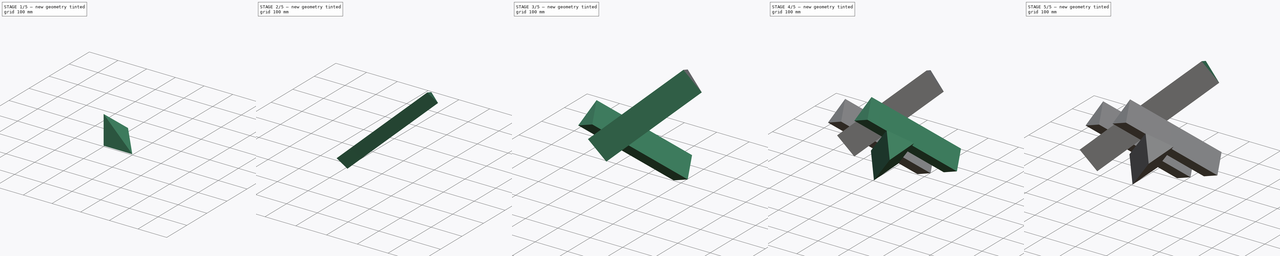
[diagram: build sequence overview — one tinted view per stage of 5, left to right]
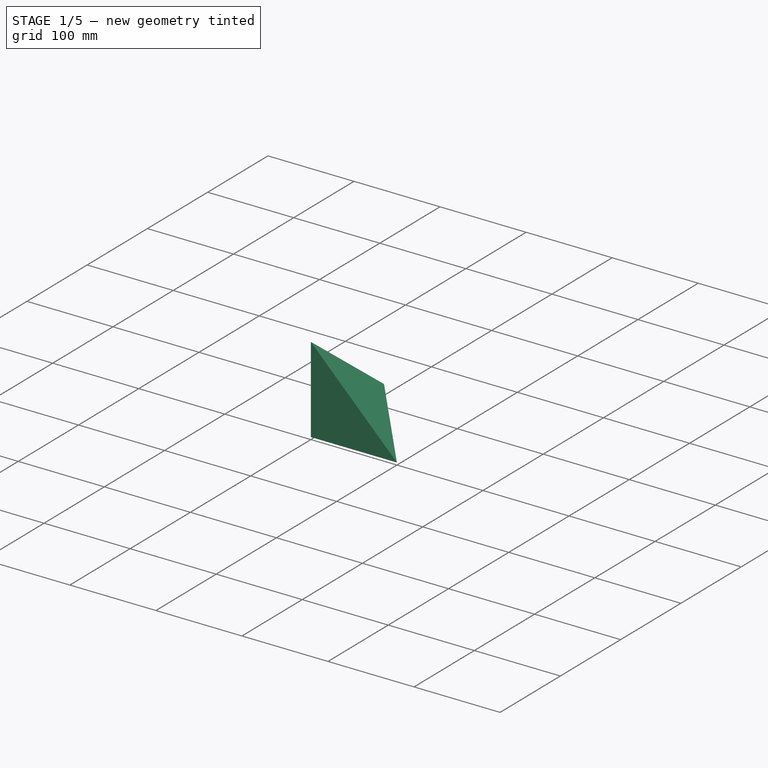
[diagram: stage 1 of 5 — iso view after this stage's code; geometry added in this stage tinted green]
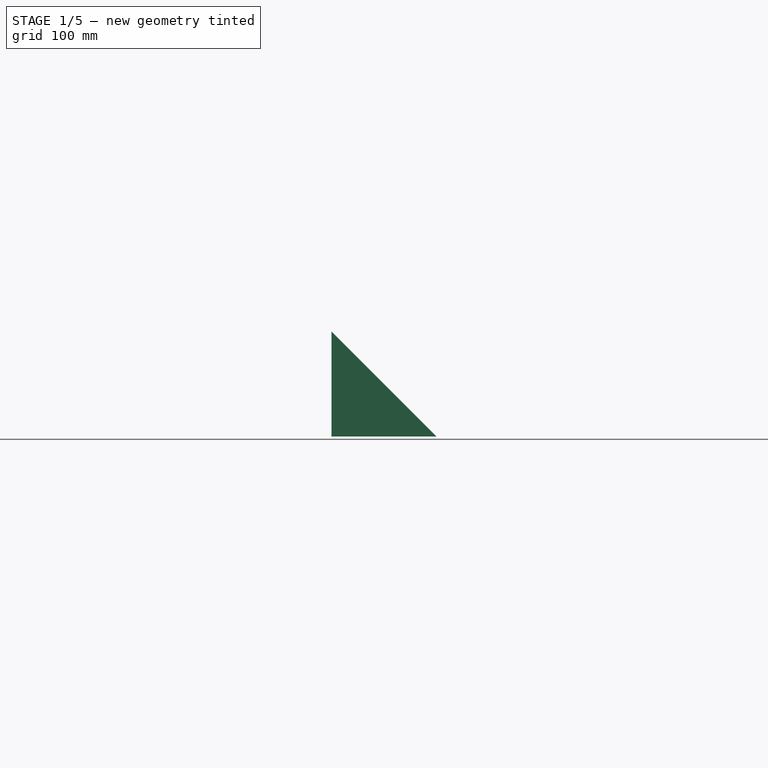
[diagram: stage 1 of 5 — front view after this stage's code; geometry added in this stage tinted green]
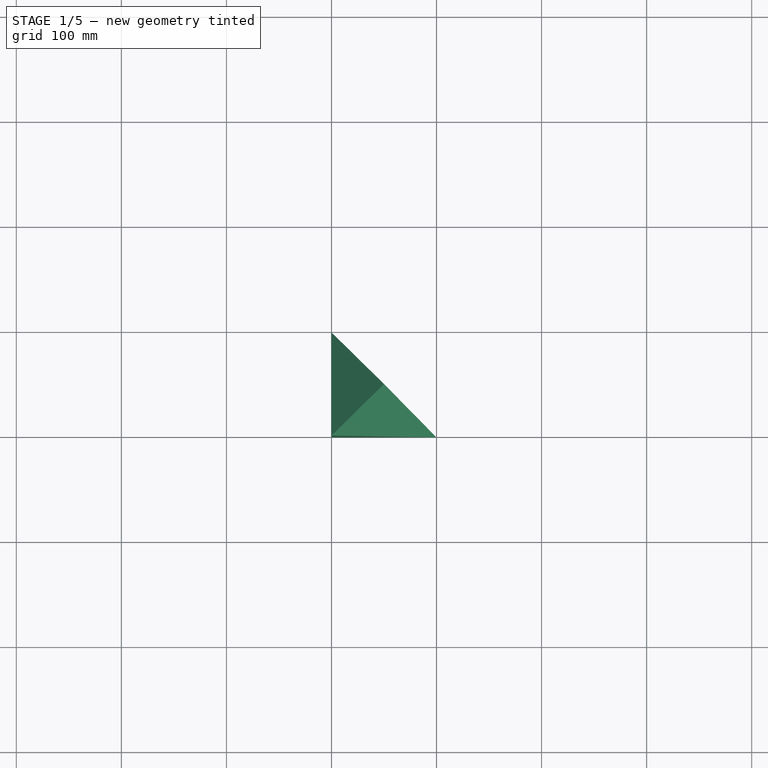
[diagram: stage 1 of 5 — top view after this stage's code; geometry added in this stage tinted green]
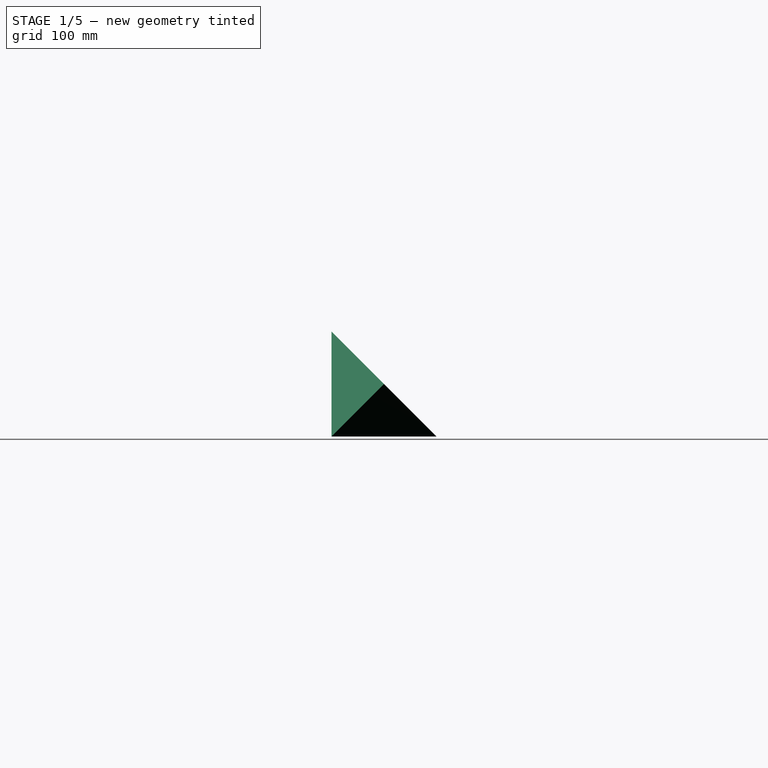
[diagram: stage 1 of 5 — right view after this stage's code; geometry added in this stage tinted green]
FCSTD DOCUMENT  (FreeCAD 1.0R39319 (Git))
Label: rhombic-dodecahedron2
License: All rights reserved
LicenseURL: https://en.wikipedia.org/wiki/All_rights_reserved
objects: PartDesign::Body×14, PartDesign::FeatureBase×11, PartDesign::Plane×7, PartDesign::Mirrored×4, PartDesign::Pocket×3, Sketcher::SketchObject×3, PartDesign::SubShapeBinder×2, PartDesign::Point×2, PartDesign::Pad×2, Spreadsheet::Sheet×1, App::VarSet×1, PartDesign::AdditiveBox×1, PartDesign::CoordinateSystem×1
note: 80 computed .brp shape members not serialized (recipe doc carries the construction recipe); baked Part::Feature solids carry a one-line shape summary decoded from their .brp

FEATURE [Spreadsheet::Sheet] Spreadsheet
FEATURE [App::VarSet] VarSet
  Dode = 70.7107
  DodeSize = 100
  expr: Dode = sqrt(2) * DodeSize * 0.5
FEATURE [PartDesign::AdditiveBox] Box
  AttacherType = Attacher::AttachEngine3D
  AttachmentSupport = -> [VarSet]
  Height = 100
  Length = 100
  Refine = true
  Suppressed = false
  Width = 100
  expr: Height = VarSet.DodeSize
  expr: Length = VarSet.DodeSize
  expr: Width = VarSet.DodeSize
FEATURE [PartDesign::Plane] DatumPlane
  AttachmentOffset = pos=(0,0,0) rot=(1,0,0;0.785398rad)
  AttachmentSupport = -> [Box]
  Length = 247.568
  MapMode = 47
  Placement = pos=(100,100,100) rot=(0,0.92388,-0.382683;3.14159rad)
  ResizeMode = 0
  Width = 330.411
FEATURE [PartDesign::Plane] DatumPlane001
  AttachmentOffset = pos=(0,0,0) rot=(-1,0,0;0.785398rad)
  AttachmentSupport = -> [Box]
  Length = 247.568
  MapMode = 47
  Placement = pos=(100,100,100) rot=(0.678598,-0.678598,-0.281085;2.59356rad)
  ResizeMode = 0
  Width = 330.411
FEATURE [PartDesign::Plane] DatumPlane002
  AttachmentOffset = pos=(0,0,0) rot=(1,0,0;0.785398rad)
  AttachmentSupport = -> [Box]
  Length = 247.568
  MapMode = 47
  Placement = pos=(100,100,100) rot=(0.678598,0.281085,-0.678598;2.59356rad)
  ResizeMode = 0
  Width = 330.411
FEATURE [PartDesign::Pocket] Pocket
  BaseFeature = -> Box
  Direction = (0,0.707107,0.707107)
  Length = 70.7107
  Length2 = 5
  Profile = -> DatumPlane
  Refine = true
  Reversed = true
  Suppressed = false
  Type = 0
  expr: Length = VarSet.Dode
FEATURE [PartDesign::Pocket] Pocket001
  BaseFeature = -> Pocket
  Direction = (0.707107,2e-16,0.707107)
  Length = 70.7107
  Length2 = 5
  Profile = -> DatumPlane001
  Refine = true
  Reversed = true
  Suppressed = false
  Type = 0
  expr: Length = VarSet.Dode
FEATURE [PartDesign::Pocket] Pocket002
  BaseFeature = -> Pocket001
  Direction = (0.707107,0.707107,0)
  Length = 70.7107
  Length2 = 5
  Profile = -> DatumPlane002
  Refine = true
  Reversed = true
  Suppressed = false
  Type = 0
  expr: Length = VarSet.Dode
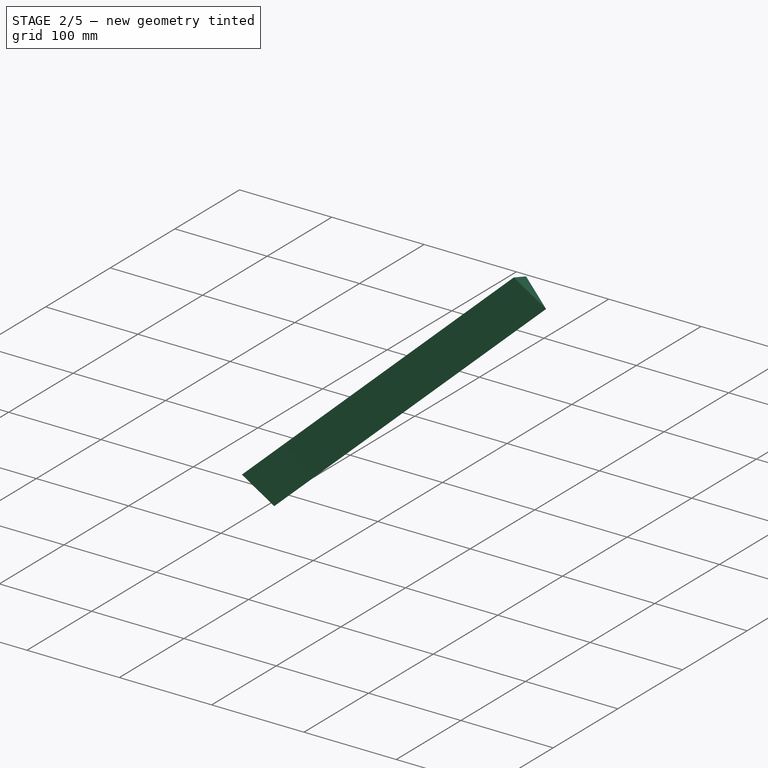
[diagram: stage 2 of 5 — iso view after this stage's code; geometry added in this stage tinted green]
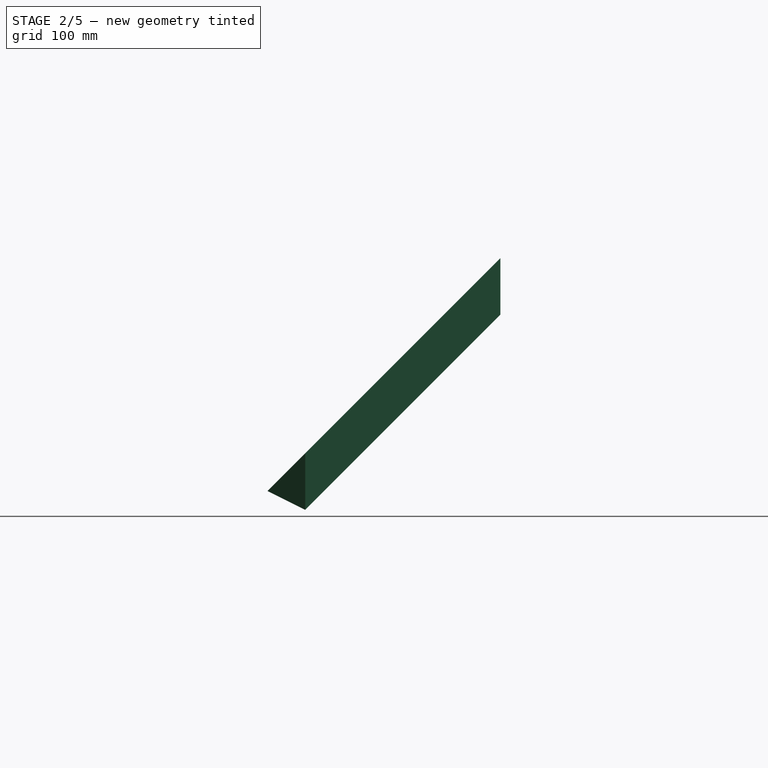
[diagram: stage 2 of 5 — front view after this stage's code; geometry added in this stage tinted green]
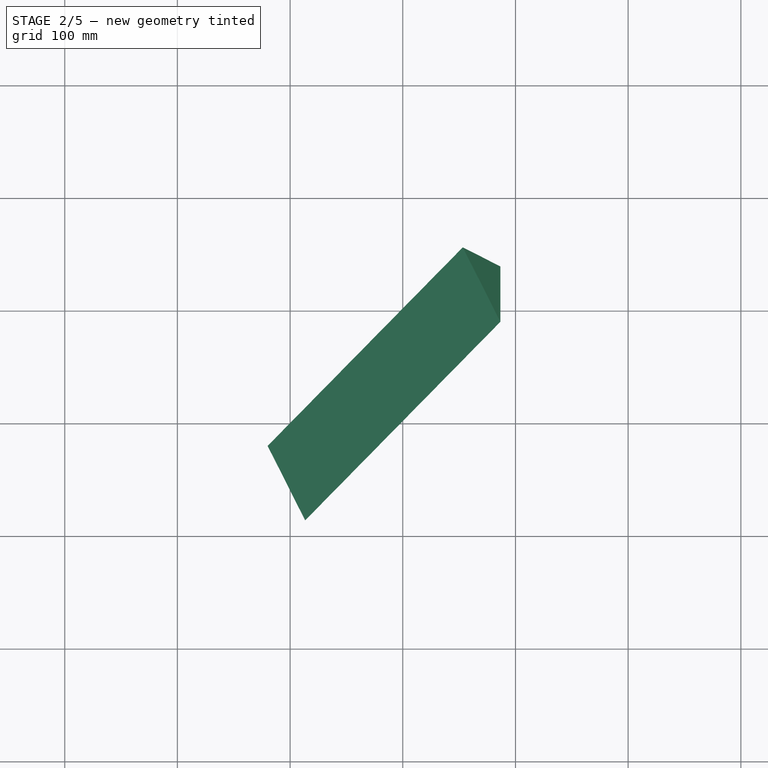
[diagram: stage 2 of 5 — top view after this stage's code; geometry added in this stage tinted green]
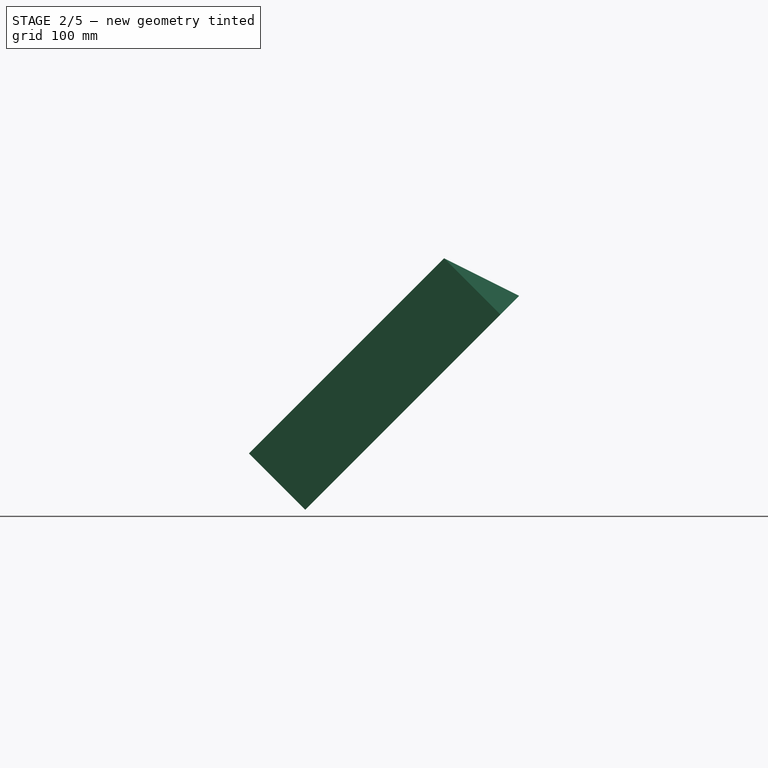
[diagram: stage 2 of 5 — right view after this stage's code; geometry added in this stage tinted green]
FEATURE [PartDesign::Mirrored] Mirrored
  BaseFeature = -> Pocket002
  MirrorPlane = -> XY_Plane
  Refine = true
  Suppressed = false
  TransformMode = 1
FEATURE [PartDesign::Mirrored] Mirrored001
  BaseFeature = -> Mirrored
  MirrorPlane = -> YZ_Plane
  Refine = true
  Suppressed = false
  TransformMode = 1
FEATURE [PartDesign::Body] Body001  label="bad"
  AllowCompound = false
  Group = -> [Binder,DatumPoint,DatumPlane003,DatumPoint001,Local_CS,DatumPlane004,Sketch,Pad]
  Origin = -> Origin001
  Tip = -> Pad
FEATURE [PartDesign::Mirrored] Mirrored002
  BaseFeature = -> Mirrored001
  MirrorPlane = -> XZ_Plane
  Refine = true
  Suppressed = false
  TransformMode = 1
FEATURE [PartDesign::Body] Body  label="rhombic-dodecahedron"
  AllowCompound = false
  Group = -> [Box,DatumPlane,DatumPlane001,DatumPlane002,Pocket,Pocket001,Pocket002,Mirrored,Mirrored001,Mirrored002]
  Origin = -> Origin
  Tip = -> Mirrored002
FEATURE [PartDesign::SubShapeBinder] Binder001
  BindCopyOnChange = 0
  BindMode = 0
  ClaimChildren = false
  Context = -> Body002 [Binder001.]
  Fuse = false
  MakeFace = true
  OffsetFill = false
  OffsetIntersection = false
  OffsetJoinType = 0
  OffsetOpenResult = false
  PartialLoad = false
  Refine = true
  Relative = true
  Support = -> [Body[Mirrored002.]]
  _Version = 2
FEATURE [Sketcher::SketchObject] Sketch001
  ArcFitTolerance = 1e-06
  AttachmentSupport = -> [Binder001]
  ExternalGeometry = -> [Binder001]
  FullyConstrained = true
  MakeInternals = false
  MapMode = 5
  Placement = pos=(0,-50,50) rot=(1,0,0;0.785398rad)
  sketch-geometry (3):
    g0: LineSegment StartX=-33.3333 StartY=23.5702 StartZ=0 EndX=33.3333 EndY=-23.5702 EndZ=0
    g1: GeomPoint X=0 Y=0 Z=0
    g2: LineSegment StartX=0 StartY=0 StartZ=0 EndX=-25 EndY=-35.3553 EndZ=0
  constraints (7):
    c: PointOnObject(g0,g-6)
    c: PointOnObject(g0,g-4)
    c: Perpendicular(g0,g-6)
    c: PointOnObject(g-1,g0)
    c: Coincident(g1,g-1)
    c: Coincident(g2,g1)
    c: Symmetric(g-5,g-5,g2)
FEATURE [PartDesign::Plane] DatumPlane005
  AttachmentSupport = -> [Sketch001]
  Length = 530.697
  MapMode = 47
  Placement = pos=(0,-50,50) rot=(0.945607,-0.124491,-0.300549;2.39496rad)
  ResizeMode = 0
  Width = 516.111
FEATURE [Sketcher::SketchObject] Sketch002
  ArcFitTolerance = 1e-06
  AttachmentSupport = -> [DatumPlane005]
  ExternalGeometry = -> [Sketch001,Binder001]
  FullyConstrained = false
  MakeInternals = false
  MapMode = 5
  Placement = pos=(1.3e-15,-50,50) rot=(0.945607,-0.124491,-0.300549;2.39496rad)
  sketch-geometry (3):
    g0: LineSegment StartX=0 StartY=0 StartZ=0 EndX=-40.8248 EndY=2.84e-14 EndZ=0
    g1: LineSegment StartX=-40.8248 StartY=2.84e-14 StartZ=0 EndX=0 EndY=70.7107 EndZ=0
    g2: LineSegment StartX=0 StartY=70.7107 StartZ=0 EndX=0 EndY=0 EndZ=0
  constraints (6):
    c: Coincident(g0,g-1)
    c: Coincident(g0,g-4)
    c: Coincident(g1,g0)
    c: Coincident(g2,g1)
    c: Coincident(g2,g0)
    c: Vertical(g2)
FEATURE [PartDesign::Pad] Pad001
  Direction = (-0.57735,-0.57735,-0.57735)
  Length = 300
  Length2 = 10
  Midplane = true
  Placement = pos=(0,-50,50) rot=(0.945607,-0.124491,-0.300549;2.39496rad)
  Profile = -> Sketch002
  ReferenceAxis = -> Sketch002 [N_Axis]
  Refine = true
  Suppressed = false
  Type = 0
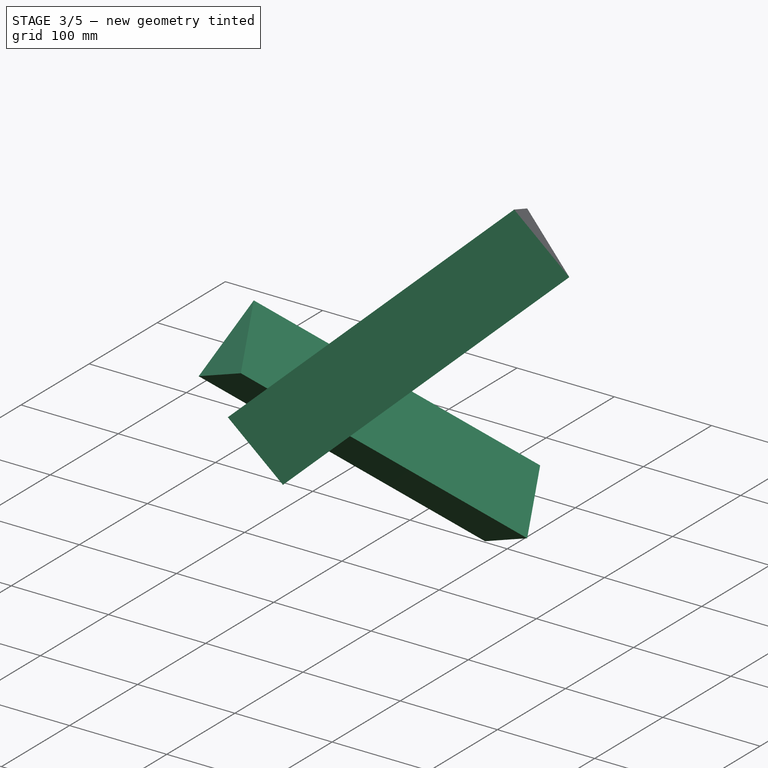
[diagram: stage 3 of 5 — iso view after this stage's code; geometry added in this stage tinted green]
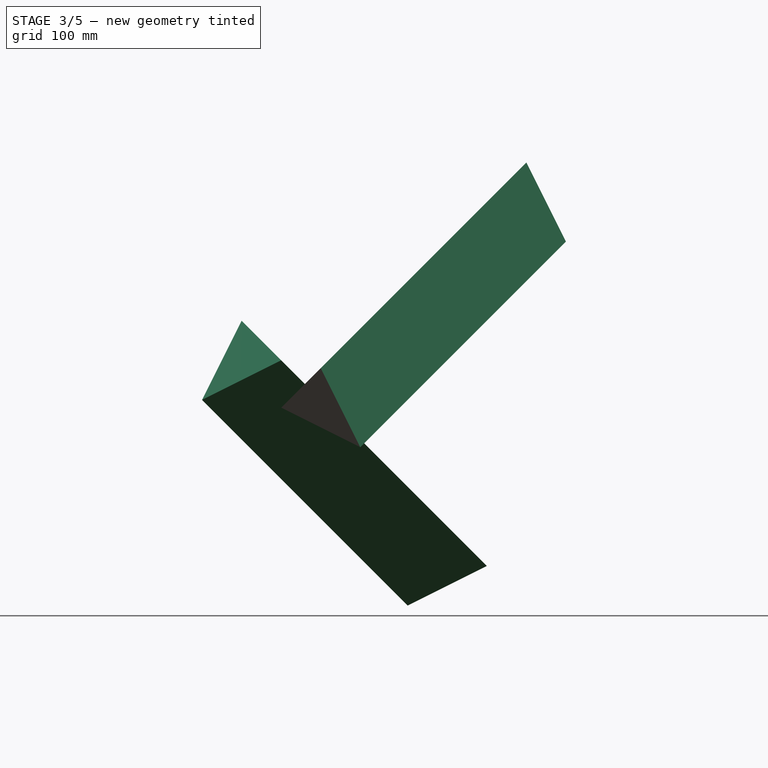
[diagram: stage 3 of 5 — front view after this stage's code; geometry added in this stage tinted green]
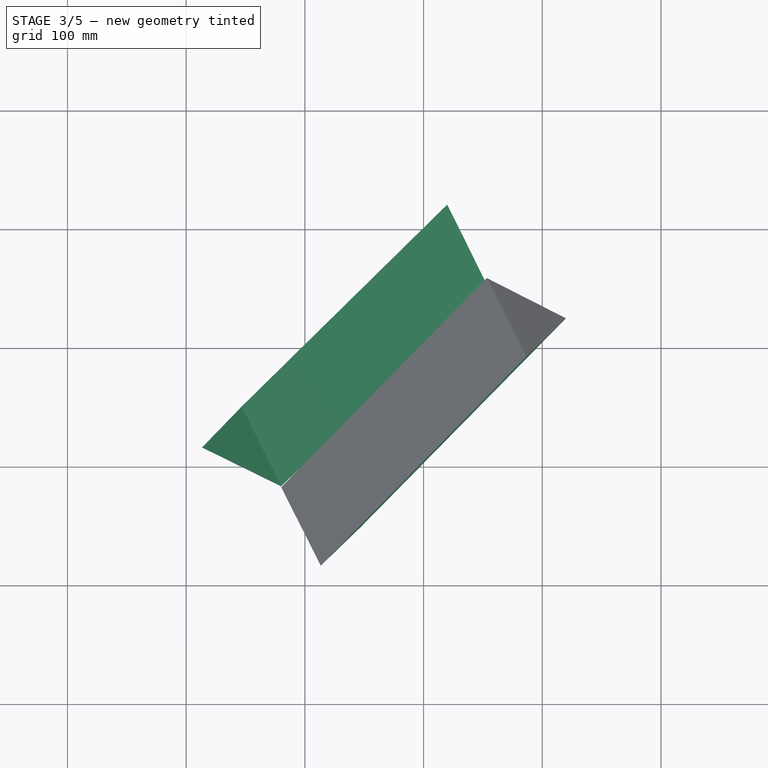
[diagram: stage 3 of 5 — top view after this stage's code; geometry added in this stage tinted green]
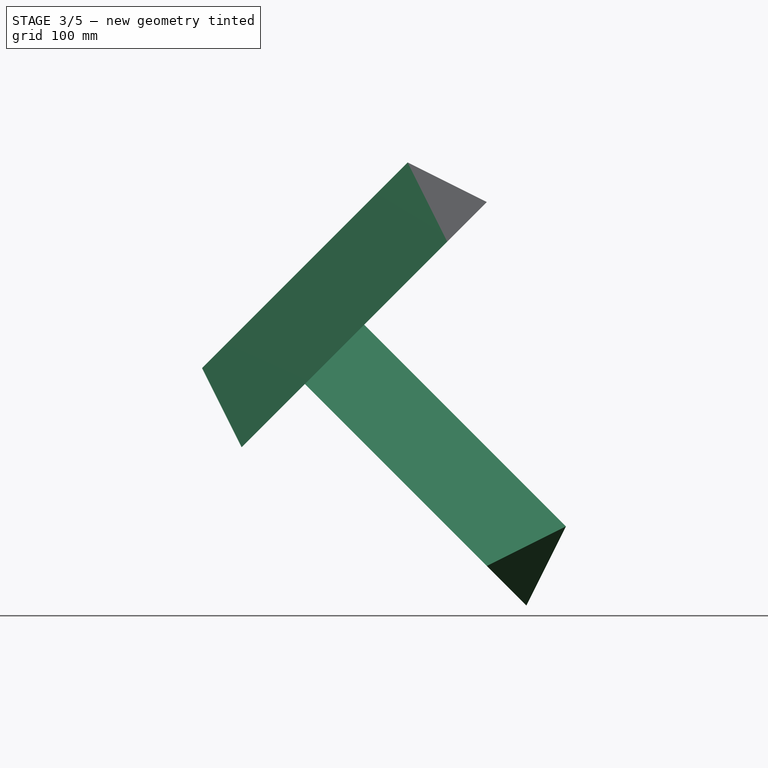
[diagram: stage 3 of 5 — right view after this stage's code; geometry added in this stage tinted green]
FEATURE [PartDesign::Plane] DatumPlane006
  AttachmentSupport = -> [Pad001]
  Length = 520.449
  MapMode = 5
  Placement = pos=(1.3e-15,-50,50) rot=(0.705828,-0.456591,0.541601;3.26167rad)
  ResizeMode = 0
  Width = 580.236
FEATURE [PartDesign::Mirrored] Mirrored003
  BaseFeature = -> Pad001
  MirrorPlane = -> Sketch002 [V_Axis]
  Originals = -> [Pad001]
  Placement = pos=(0,-50,50) rot=(0.945607,-0.124491,-0.300549;2.39496rad)
  Refine = true
  Suppressed = false
  TransformMode = 0
FEATURE [PartDesign::Body] Body005  label="top4"
  AllowCompound = false
  Group = -> [Clone002]
  Origin = -> Origin005
  Placement = pos=(0,0,0) rot=(0,0,1;-1.5708rad)
  Tip = -> Clone002
FEATURE [PartDesign::FeatureBase] Clone003
  BaseFeature = -> Body002
  Suppressed = false
FEATURE [PartDesign::Body] Body006  label="down"
  AllowCompound = false
  Group = -> [Clone003]
  Origin = -> Origin006
  Placement = pos=(0,0,0) rot=(0,1,0;1.5708rad)
  Tip = -> Clone003
FEATURE [PartDesign::FeatureBase] Clone004
  BaseFeature = -> Body002
  Suppressed = false
FEATURE [PartDesign::Body] Body010
  AllowCompound = false
  Group = -> [Clone007]
  Origin = -> Origin010
  Placement = pos=(0,0,0) rot=(0,0,1;3.14159rad)
  Tip = -> Clone007
FEATURE [PartDesign::FeatureBase] Clone008
  BaseFeature = -> Body007
  Placement = pos=(0,0,0) rot=(0,1,0;3.14159rad)
  Suppressed = false
FEATURE [PartDesign::Body] Body012
  AllowCompound = false
  Group = -> [Clone009]
  Origin = -> Origin012
  Placement = pos=(0,0,0) rot=(0,0,1;1.5708rad)
  Tip = -> Clone009
FEATURE [PartDesign::FeatureBase] Clone010
  BaseFeature = -> Body011
  Placement = pos=(0,0,0) rot=(0,0,1;-1.5708rad)
  Suppressed = false
FEATURE [PartDesign::Body] Body013
  AllowCompound = false
  Group = -> [Clone010]
  Origin = -> Origin013
  Placement = pos=(0,0,0) rot=(1,0,0;1.5708rad)
  Tip = -> Clone010
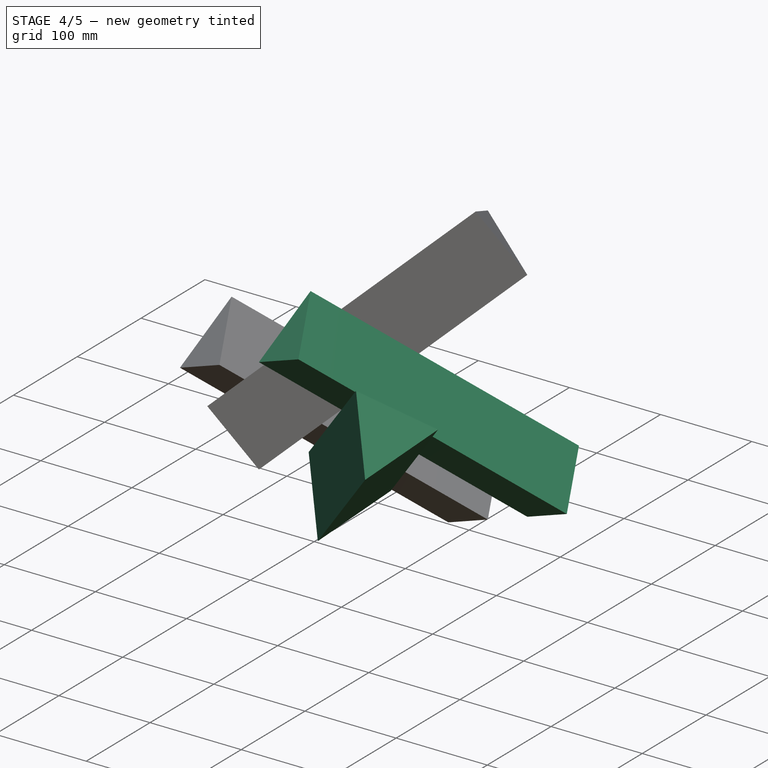
[diagram: stage 4 of 5 — iso view after this stage's code; geometry added in this stage tinted green]
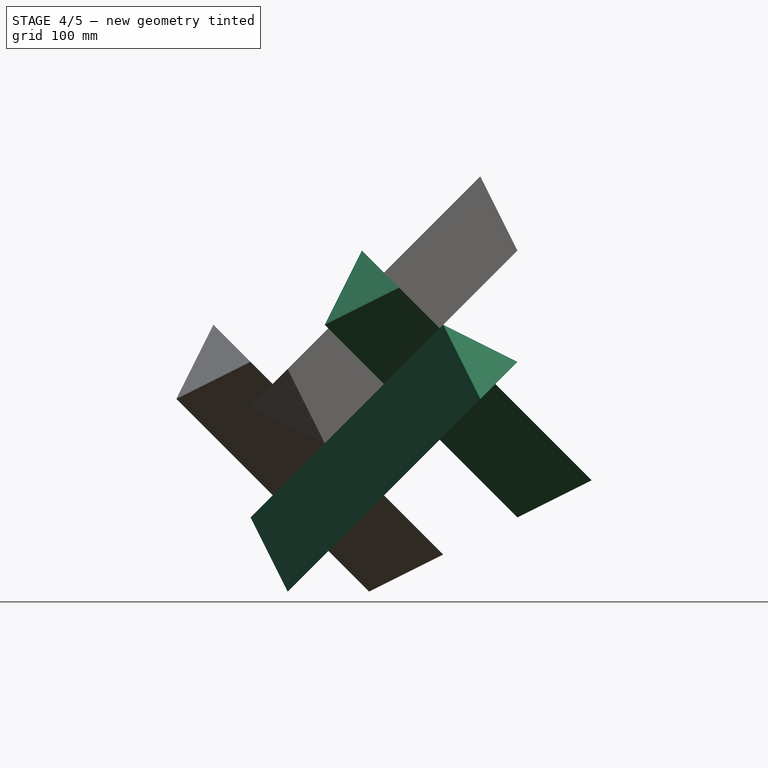
[diagram: stage 4 of 5 — front view after this stage's code; geometry added in this stage tinted green]
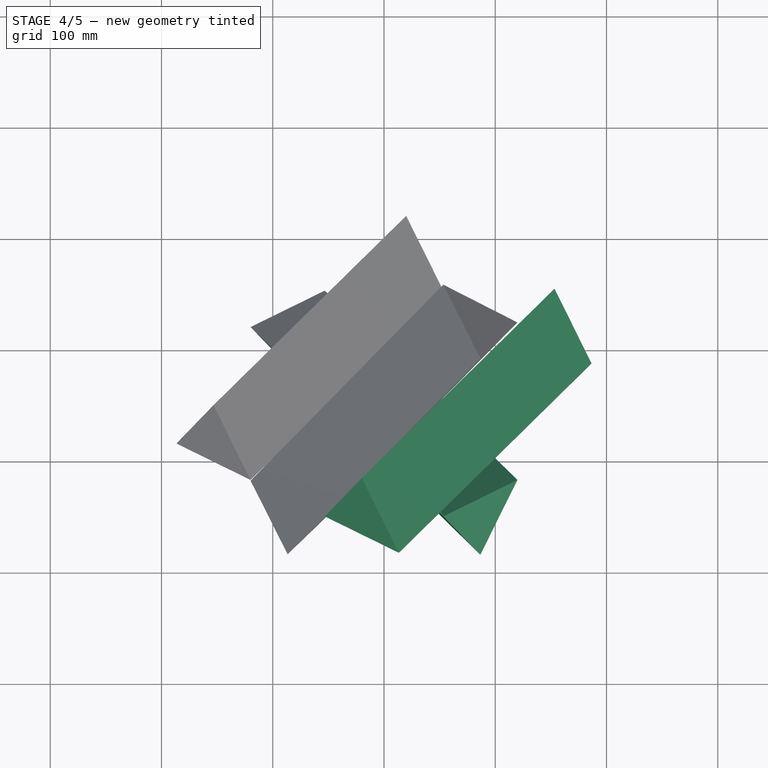
[diagram: stage 4 of 5 — top view after this stage's code; geometry added in this stage tinted green]
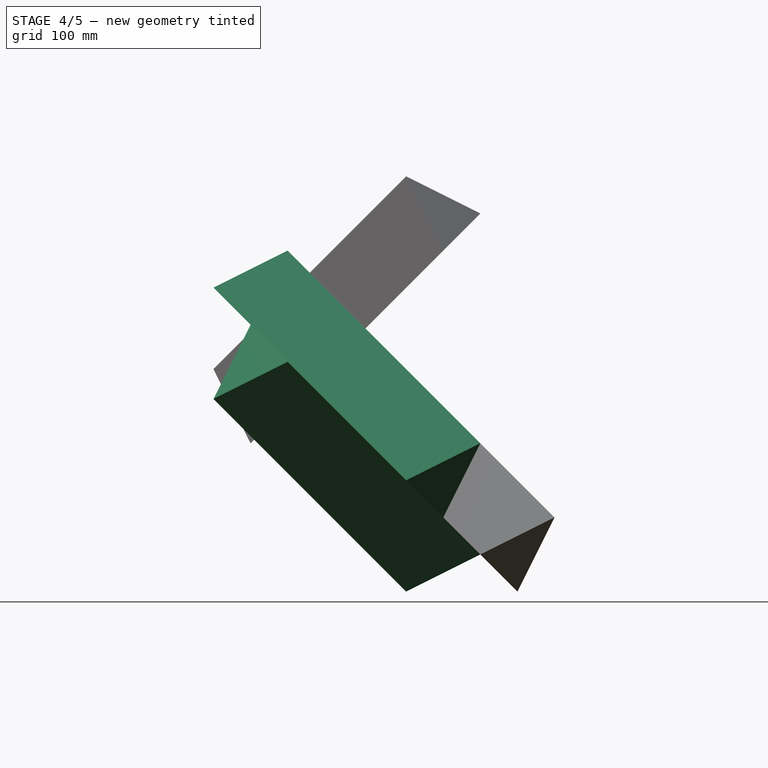
[diagram: stage 4 of 5 — right view after this stage's code; geometry added in this stage tinted green]
FEATURE [PartDesign::Body] Body007  label="brown"
  AllowCompound = false
  Group = -> [Clone004]
  Origin = -> Origin007
  Placement = pos=(0,0,0) rot=(0,1,0;3.14159rad)
  Tip = -> Clone004
FEATURE [PartDesign::FeatureBase] Clone005
  BaseFeature = -> Body002
  Suppressed = false
FEATURE [PartDesign::Body] Body008
  AllowCompound = false
  Group = -> [Clone005]
  Origin = -> Origin008
  Placement = pos=(0,0,0) rot=(0,1,0;-1.5708rad)
  Tip = -> Clone005
FEATURE [PartDesign::FeatureBase] Clone006
  BaseFeature = -> Body007
  Placement = pos=(0,0,0) rot=(0,1,0;3.14159rad)
  Suppressed = false
FEATURE [PartDesign::Body] Body009
  AllowCompound = false
  Group = -> [Clone006]
  Origin = -> Origin009
  Placement = pos=(0,0,0) rot=(0,0,1;1.5708rad)
  Tip = -> Clone006
FEATURE [PartDesign::FeatureBase] Clone007
  BaseFeature = -> Body007
  Placement = pos=(0,0,0) rot=(0,1,0;3.14159rad)
  Suppressed = false
FEATURE [PartDesign::Body] Body011
  AllowCompound = false
  Group = -> [Clone008]
  Origin = -> Origin011
  Placement = pos=(0,0,0) rot=(0,0,1;-1.5708rad)
  Tip = -> Clone008
FEATURE [PartDesign::FeatureBase] Clone009
  BaseFeature = -> Body006
  Placement = pos=(0,0,0) rot=(0,1,0;1.5708rad)
  Suppressed = false
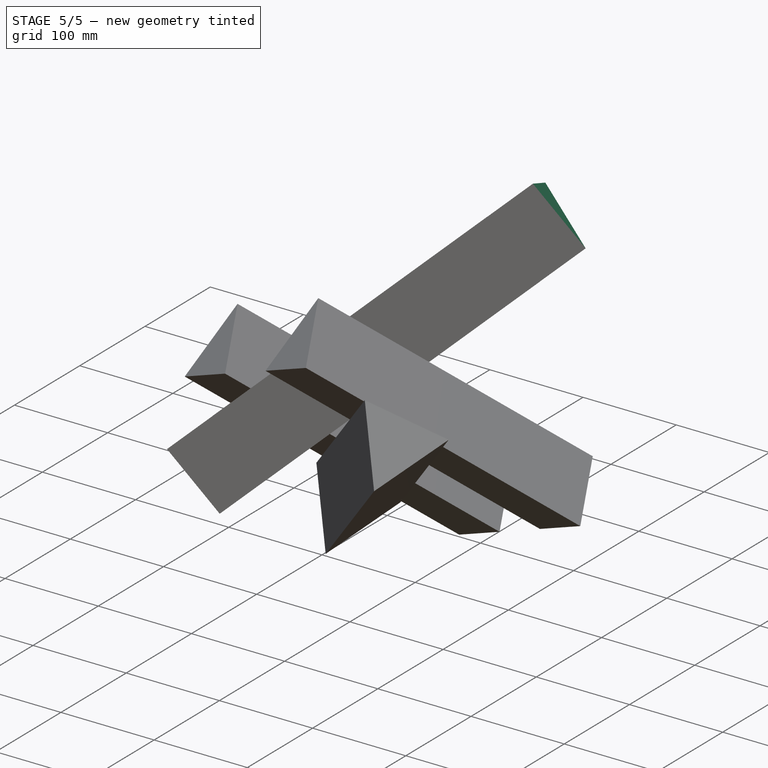
[diagram: stage 5 of 5 — iso view after this stage's code; geometry added in this stage tinted green]
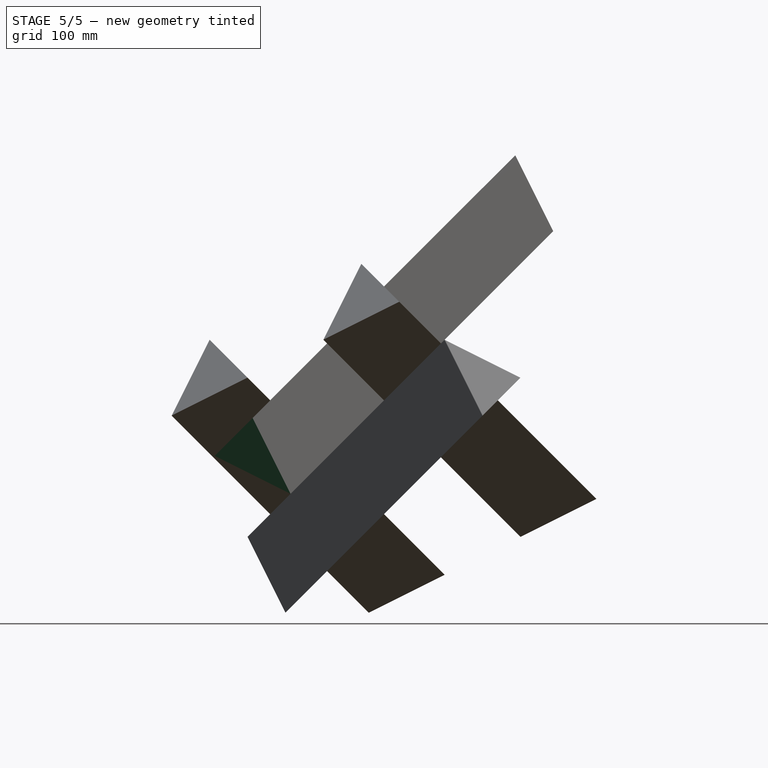
[diagram: stage 5 of 5 — front view after this stage's code; geometry added in this stage tinted green]
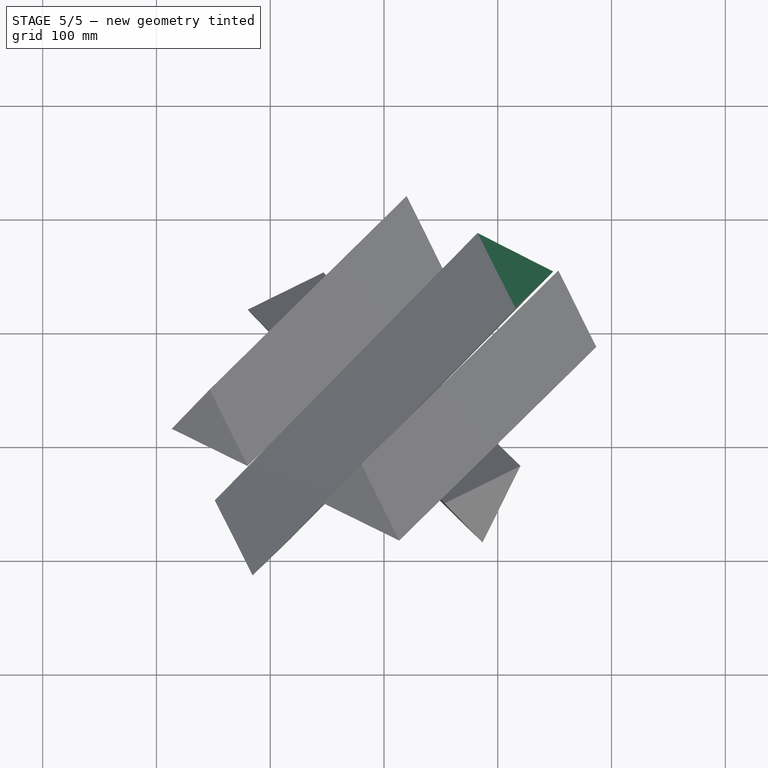
[diagram: stage 5 of 5 — top view after this stage's code; geometry added in this stage tinted green]
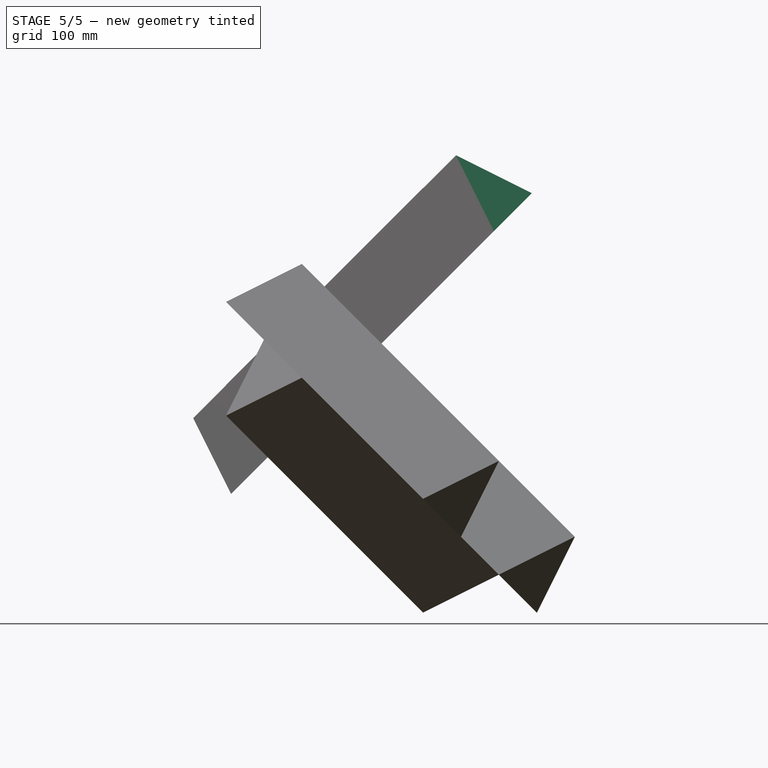
[diagram: stage 5 of 5 — right view after this stage's code; geometry added in this stage tinted green]
FEATURE [PartDesign::SubShapeBinder] Binder
  BindCopyOnChange = 0
  BindMode = 0
  ClaimChildren = false
  Context = -> Body001 [Binder.]
  Fuse = false
  MakeFace = true
  OffsetFill = false
  OffsetIntersection = false
  OffsetJoinType = 0
  OffsetOpenResult = false
  PartialLoad = false
  Refine = true
  Relative = true
  Support = -> [Body[Mirrored002.Face7]]
  _Version = 2
FEATURE [PartDesign::Point] DatumPoint
  AttacherType = Attacher::AttachEnginePoint
  AttachmentSupport = -> [Binder]
  MapMode = 37
  Placement = pos=(-6.2e-15,-50,50) rot=(0,0,1;0rad)
FEATURE [PartDesign::Plane] DatumPlane003
  AttachmentSupport = -> [Binder,DatumPoint]
  Length = 526.044
  MapMode = 7
  Placement = pos=(-33.3333,-33.3333,66.6667) rot=(0.187053,0.451587,0.872399;2.44807rad)
  ResizeMode = 0
  Width = 599.739
FEATURE [PartDesign::Point] DatumPoint001
  AttacherType = Attacher::AttachEnginePoint
  AttachmentSupport = -> [DatumPlane003]
  MapMode = 32
  Placement = pos=(-33.3333,-33.3333,66.6667) rot=(0.187053,0.451587,0.872399;2.44807rad)
FEATURE [PartDesign::CoordinateSystem] Local_CS
  AttacherType = Attacher::AttachEngine3D
  AttachmentSupport = -> [DatumPoint,DatumPoint001,Binder]
  MapMode = 49
  Placement = pos=(-6.2e-15,-50,50) rot=(0.120741,-0.379884,0.91712;2.57432rad)
FEATURE [PartDesign::Plane] DatumPlane004
  AttachmentSupport = -> [Local_CS]
  Length = 593.573
  MapMode = 3
  Placement = pos=(-5e-15,-50,50) rot=(0.281747,0.36718,0.886452;2.90924rad)
  ResizeMode = 0
  Width = 538.433
FEATURE [Sketcher::SketchObject] Sketch
  ArcFitTolerance = 1e-06
  AttachmentSupport = -> [DatumPlane004]
  FullyConstrained = false
  MakeInternals = false
  MapMode = 5
  Placement = pos=(-4.3e-15,-50,50) rot=(0.281747,0.36718,0.886452;2.90924rad)
  sketch-geometry (6):
    g0: GeomPoint X=40.75 Y=0 Z=0
    g1: GeomPoint X=0 Y=70.5811 Z=0
    g2: GeomPoint X=-60.5072 Y=0 Z=0
    g3: LineSegment StartX=40.75 StartY=0 StartZ=0 EndX=0 EndY=70.5811 EndZ=0
    g4: LineSegment StartX=0 StartY=70.5811 StartZ=0 EndX=-40.75 EndY=-4.832e-13 EndZ=0
    g5: LineSegment StartX=-40.75 StartY=-4.832e-13 StartZ=0 EndX=40.75 EndY=0 EndZ=0
  constraints (11):
    c: PointOnObject(g0,g-1)
    c: PointOnObject(g1,g-2)
    c: PointOnObject(g2,g-1)
    c: Coincident(g3,g0)
    c: Coincident(g3,g1)
    c: Coincident(g4,g1)
    c: Coincident(g5,g4)
    c: Coincident(g5,g0)
    c: Symmetric(g0,g4,g-1)
    c: DistanceX(g5,g5) = 81.5
    c: Equal(g4,g5)
FEATURE [PartDesign::Pad] Pad
  Direction = (0.57735,0.57735,0.57735)
  Length = 400
  Length2 = 10
  Midplane = true
  Placement = pos=(-5e-15,-50,50) rot=(0.281747,0.36718,0.886452;2.90924rad)
  Profile = -> Sketch
  ReferenceAxis = -> Sketch [N_Axis]
  Refine = true
  Suppressed = false
  Type = 0
FEATURE [PartDesign::Body] Body002  label="piece"
  AllowCompound = false
  Group = -> [Binder001,Sketch001,DatumPlane005,Sketch002,Pad001,DatumPlane006,Mirrored003]
  Origin = -> Origin002
  Tip = -> Mirrored003
FEATURE [PartDesign::FeatureBase] Clone
  BaseFeature = -> Body002
  Suppressed = false
FEATURE [PartDesign::Body] Body003  label="top2"
  AllowCompound = false
  Group = -> [Clone]
  Origin = -> Origin003
  Placement = pos=(0,0,0) rot=(0,0,1;1.5708rad)
  Tip = -> Clone
FEATURE [PartDesign::FeatureBase] Clone001
  BaseFeature = -> Body002
  Suppressed = false
FEATURE [PartDesign::Body] Body004  label="top3"
  AllowCompound = false
  Group = -> [Clone001]
  Origin = -> Origin004
  Placement = pos=(0,0,0) rot=(0,0,1;3.14159rad)
  Tip = -> Clone001
FEATURE [PartDesign::FeatureBase] Clone002
  BaseFeature = -> Body002
  Suppressed = false
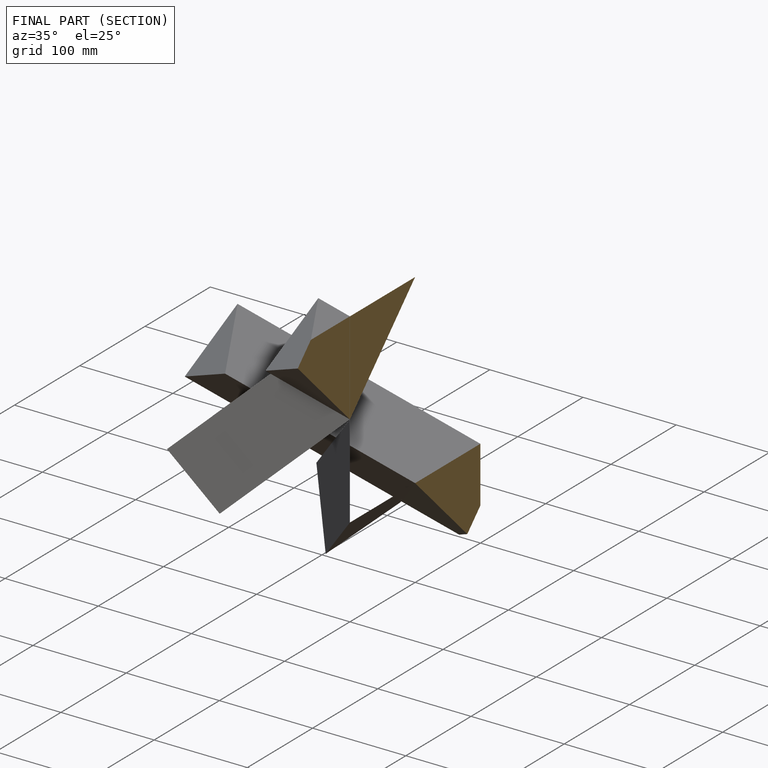
[diagram: finished part — half-section view (interior)]
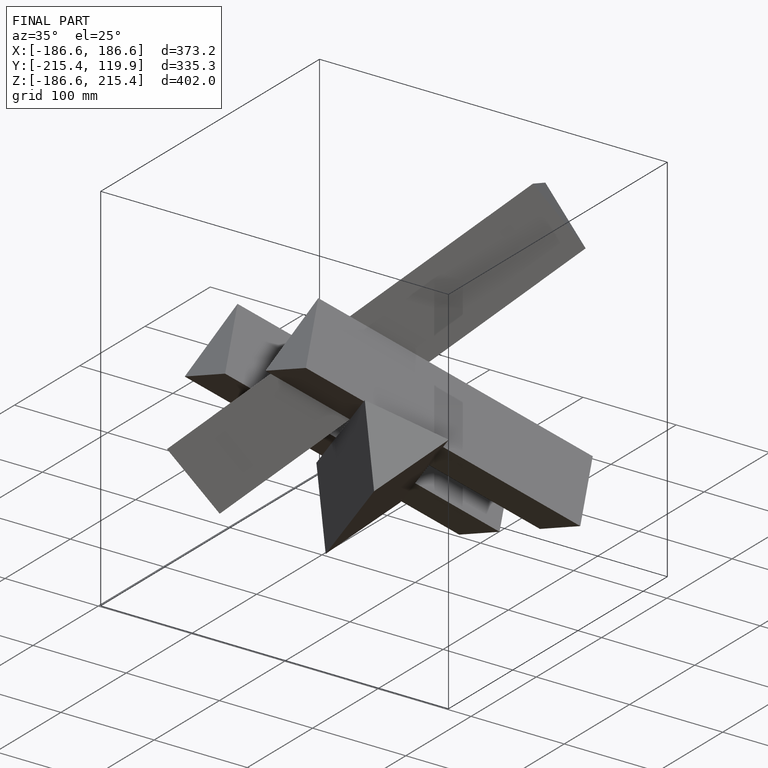
[diagram: finished part — iso view with bounding-box wireframe]
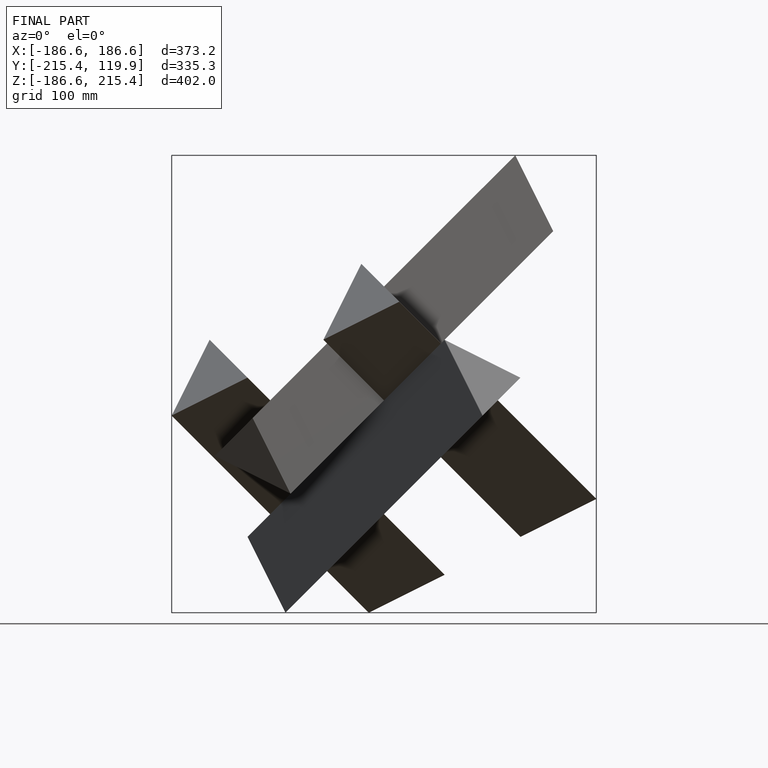
[diagram: finished part — front view with bounding-box wireframe]
